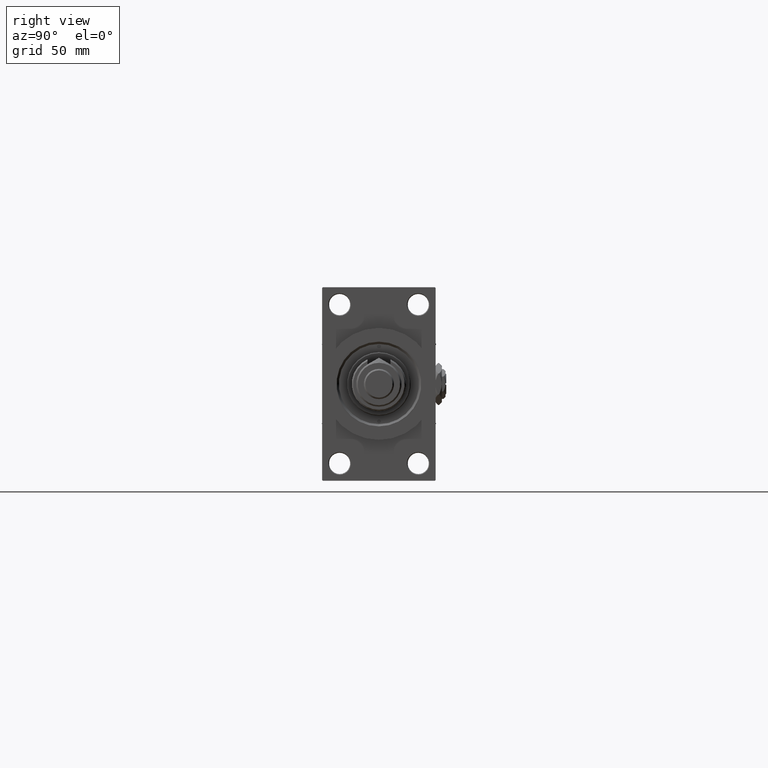
[diagram: clean part render]
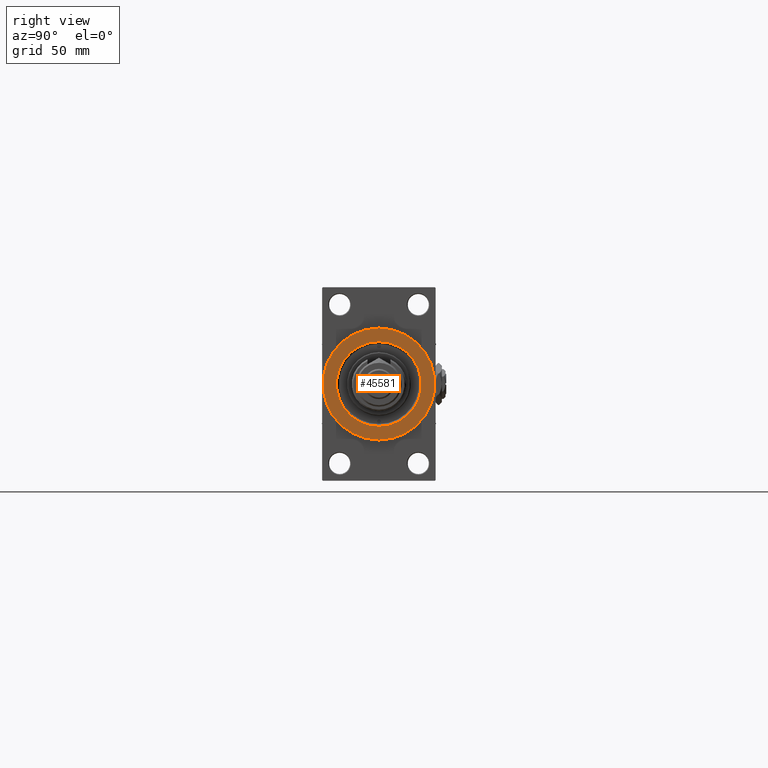
[diagram: same view with one face highlighted and labeled with its STEP entity id]
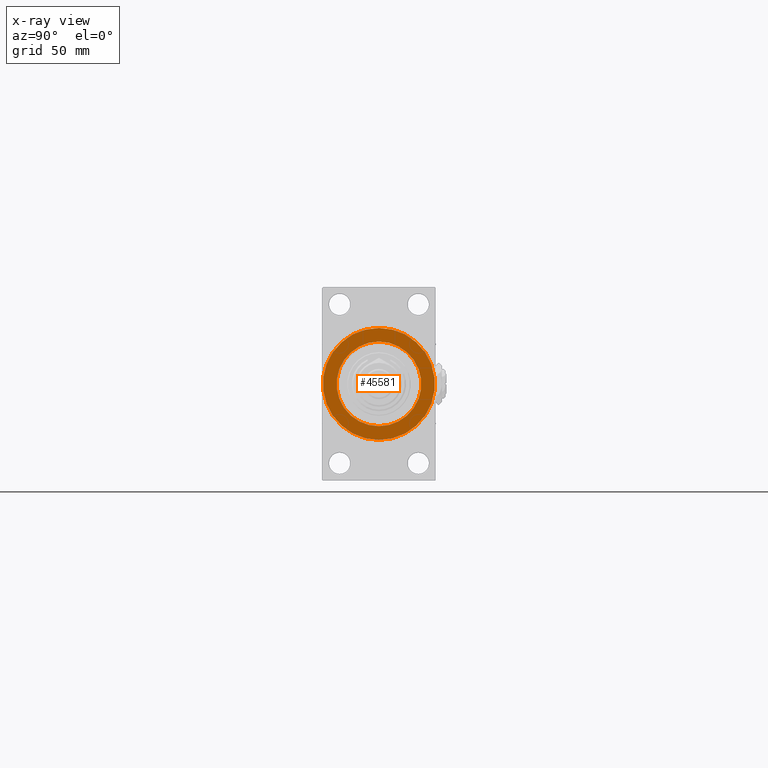
[diagram: x-ray of the same camera — body ghosted, the highlighted face saturated]
A machine part, right view. The second image highlights one B-rep face of the part: STEP entity #45581.
The next image is the same camera in x-ray: the body ghosted, the highlighted face saturated — about 0% of this face is hidden behind the body in this view.
In plain terms, the highlighted planar face has unit normal (1, 0, 0).
Its self-contained STEP definition (entity closure, byte-faithful):
#610 = AXIS2_PLACEMENT_3D ( 'NONE', #10634, #23071, #2173 ) ;
#687 = AXIS2_PLACEMENT_3D ( 'NONE', #3107, #11324, #31962 ) ;
#726 = EDGE_CURVE ( 'NONE', #44053, #30905, #25819, .T. ) ;
#822 = CARTESIAN_POINT ( 'NONE',  ( 333.9999999999999432, 0.000000000000000000, 0.000000000000000000 ) ) ;
#2173 = DIRECTION ( 'NONE',  ( 0.000000000000000000, 0.000000000000000000, -1.000000000000000000 ) ) ;
#3107 = CARTESIAN_POINT ( 'NONE',  ( 333.9999999999999432, 0.000000000000000000, 0.000000000000000000 ) ) ;
#4016 = EDGE_CURVE ( 'NONE', #21108, #37617, #29373, .T. ) ;
#8134 = FACE_BOUND ( 'NONE', #20267, .T. ) ;
#10568 = CARTESIAN_POINT ( 'NONE',  ( 333.9999999999999432, 0.000000000000000000, 0.000000000000000000 ) ) ;
#10634 = CARTESIAN_POINT ( 'NONE',  ( 333.9999999999999432, 0.000000000000000000, 0.000000000000000000 ) ) ;
#10969 = ORIENTED_EDGE ( 'NONE', *, *, #726, .T. ) ;
#11324 = DIRECTION ( 'NONE',  ( 1.000000000000000000, 0.000000000000000000, 0.000000000000000000 ) ) ;
#12949 = EDGE_CURVE ( 'NONE', #37617, #21108, #17769, .T. ) ;
#14009 = CARTESIAN_POINT ( 'NONE',  ( 333.9999999999999432, 0.000000000000000000, 0.000000000000000000 ) ) ;
#14282 = DIRECTION ( 'NONE',  ( 0.000000000000000000, 0.000000000000000000, -1.000000000000000000 ) ) ;
#14675 = CARTESIAN_POINT ( 'NONE',  ( 333.9999999999999432, 0.000000000000000000, 37.00000000000000000 ) ) ;
#15827 = CIRCLE ( 'NONE', #610, 37.00000000000000000 ) ;
#16509 = EDGE_LOOP ( 'NONE', ( #10969, #24148 ) ) ;
#17012 = CARTESIAN_POINT ( 'NONE',  ( 333.9999999999999432, 3.429011037612585332E-15, 27.99999999999996803 ) ) ;
#17769 = CIRCLE ( 'NONE', #19440, 27.99999999999996803 ) ;
#19440 = AXIS2_PLACEMENT_3D ( 'NONE', #14009, #29629, #45774 ) ;
#20267 = EDGE_LOOP ( 'NONE', ( #28481, #52127 ) ) ;
#20934 = DIRECTION ( 'NONE',  ( 1.000000000000000000, 0.000000000000000000, 0.000000000000000000 ) ) ;
#21108 = VERTEX_POINT ( 'NONE', #17012 ) ;
#23071 = DIRECTION ( 'NONE',  ( 1.000000000000000000, 0.000000000000000000, 0.000000000000000000 ) ) ;
#23492 = PLANE ( 'NONE',  #687 ) ;
#24148 = ORIENTED_EDGE ( 'NONE', *, *, #44293, .T. ) ;
#25819 = CIRCLE ( 'NONE', #42729, 37.00000000000000000 ) ;
#25982 = CARTESIAN_POINT ( 'NONE',  ( 333.9999999999999432, 4.531193156845206793E-15, -37.00000000000000000 ) ) ;
#28481 = ORIENTED_EDGE ( 'NONE', *, *, #12949, .T. ) ;
#29373 = CIRCLE ( 'NONE', #47122, 27.99999999999996803 ) ;
#29629 = DIRECTION ( 'NONE',  ( -1.000000000000000000, -0.000000000000000000, -0.000000000000000000 ) ) ;
#30905 = VERTEX_POINT ( 'NONE', #25982 ) ;
#31962 = DIRECTION ( 'NONE',  ( 0.000000000000000000, 0.000000000000000000, -1.000000000000000000 ) ) ;
#37617 = VERTEX_POINT ( 'NONE', #47996 ) ;
#39354 = FACE_OUTER_BOUND ( 'NONE', #16509, .T. ) ;
#42053 = DIRECTION ( 'NONE',  ( 0.000000000000000000, 0.000000000000000000, -1.000000000000000000 ) ) ;
#42729 = AXIS2_PLACEMENT_3D ( 'NONE', #822, #20934, #42053 ) ;
#44053 = VERTEX_POINT ( 'NONE', #14675 ) ;
#44293 = EDGE_CURVE ( 'NONE', #30905, #44053, #15827, .T. ) ;
#45581 = ADVANCED_FACE ( 'NONE', ( #8134, #39354 ), #23492, .T. ) ;
#45774 = DIRECTION ( 'NONE',  ( 0.000000000000000000, 0.000000000000000000, -1.000000000000000000 ) ) ;
#47122 = AXIS2_PLACEMENT_3D ( 'NONE', #10568, #50529, #14282 ) ;
#47996 = CARTESIAN_POINT ( 'NONE',  ( 333.9999999999999432, 0.000000000000000000, -27.99999999999996803 ) ) ;
#50529 = DIRECTION ( 'NONE',  ( -1.000000000000000000, -0.000000000000000000, -0.000000000000000000 ) ) ;
#52127 = ORIENTED_EDGE ( 'NONE', *, *, #4016, .T. ) ;